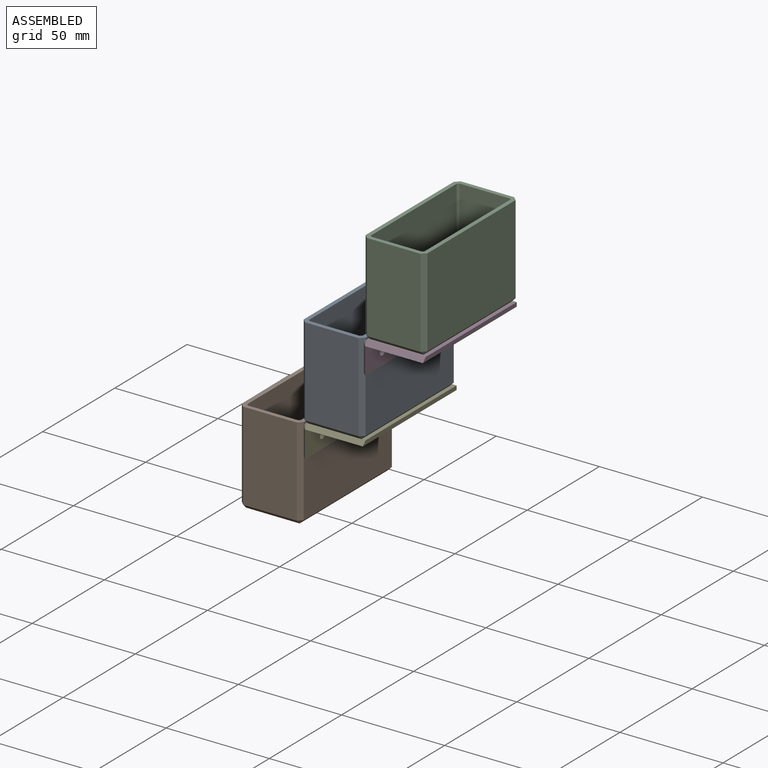
[diagram: assembled view]
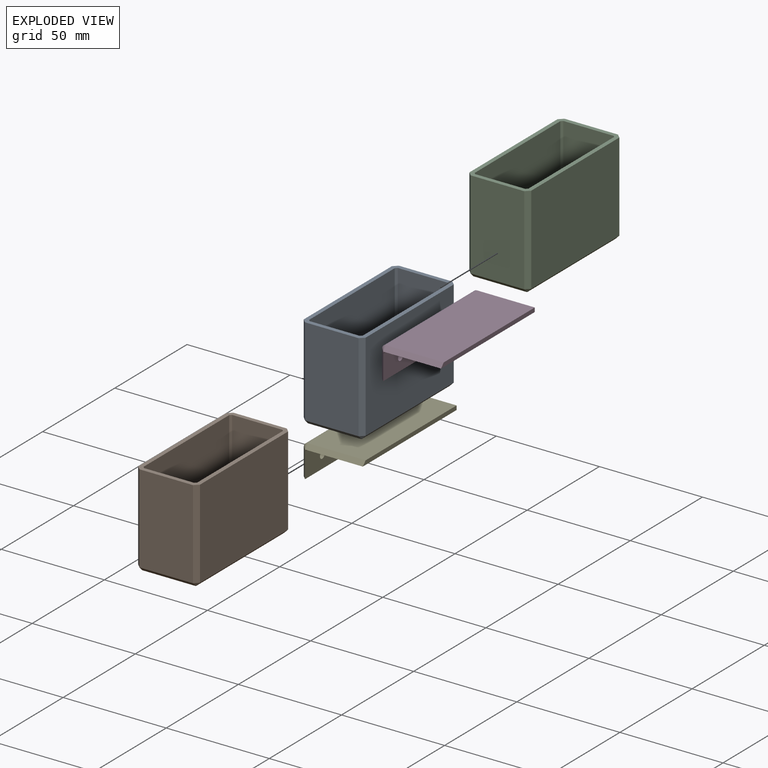
[diagram: exploded view]
GUIDED TOUR — MATED ASSEMBLY (Onshape document 3da9f7d668171b96f185b66c, AutoMate assembly 3da9f7d668171b96f185b66c_e2c4ebff8135b606bf697213_e9b427cead353215f57af9dd_default)

This assembly has 5 components, labeled P0..P4 below (a component is one placed occurrence of a part; the same part can appear more than once), held together by 11 mates. A mate is a constraint between two components; its type names the relative motion it leaves free:
  PLANAR — leaves sliding in the plane through the listed point (normal = the listed direction) and rotation about that normal free.
Axis/direction vectors are unit vectors and 'through' points are millimeter coordinates, both in the assembly's world frame.

MATES
  1. PLANAR "Planar 1": P1 <-> P4, direction (0.000, 0.000, 1.000) through (-5.74, 12.58, -43.41) mm
  2. PLANAR "Planar 5": P1 <-> P0, direction (0.000, -1.000, 0.000) through (-5.74, -19.92, -64.91) mm
  3. PLANAR "Planar 3": P0 <-> P4, direction (0.000, 0.000, -1.000) through (24.26, 12.58, -43.41) mm
  4. PLANAR "Planar 8": P0 <-> P1, direction (0.000, 1.000, 0.000) through (24.26, 45.08, -19.91) mm
  5. PLANAR "Planar 4": P0 <-> P4, direction (1.000, 0.000, 0.000) through (39.26, 12.58, -41.41) mm
  6. PLANAR "Planar 10": P2 <-> P0, direction (0.000, -1.000, 0.000) through (54.26, -19.92, 25.09) mm
  7. PLANAR "Planar 2": P1 <-> P4, direction (1.000, 0.000, 0.000) through (9.26, 12.58, -64.91) mm
  8. PLANAR "Planar 11": P2 <-> P3, direction (1.000, 0.000, 0.000) through (69.26, 12.58, 25.09) mm
  9. PLANAR "Planar 6": P3 <-> P0, direction (-1.000, 0.000, 0.000) through (39.26, 12.38, -6.90) mm
  10. PLANAR "Planar 7": P0 <-> P3, direction (0.000, 0.000, 1.000) through (24.26, 12.58, 1.59) mm
  11. PLANAR "Planar 9": P2 <-> P3, direction (0.000, 0.000, -1.000) through (54.26, 12.58, 1.59) mm

ASSEMBLY ORDER
  1. P3 — the base component [order verified]
  2. P0 [order verified]
  3. P2 [order verified]
  4. P4 [order verified]
  5. P1 [order verified]
Order-tag legend:
  [order verified] — this step's position reverses a verified removal order: the component was checked to insert without passing through the ones already placed.

Of the 5 components, 5 carry the full construction recipe — the FeatureScript program that regenerates the part's solid from scratch; the rest are supplied as boundary geometry only.
Each toured component is shown spotlighted twice — in the assembled view, then in the exploded view, where a leader line traces a displaced component back to its assembled socket (saturated green if recipe-attached, orange if geometry-only; every other component desaturated gray) — followed by its recipe or geometry summary and the mates that hold it.
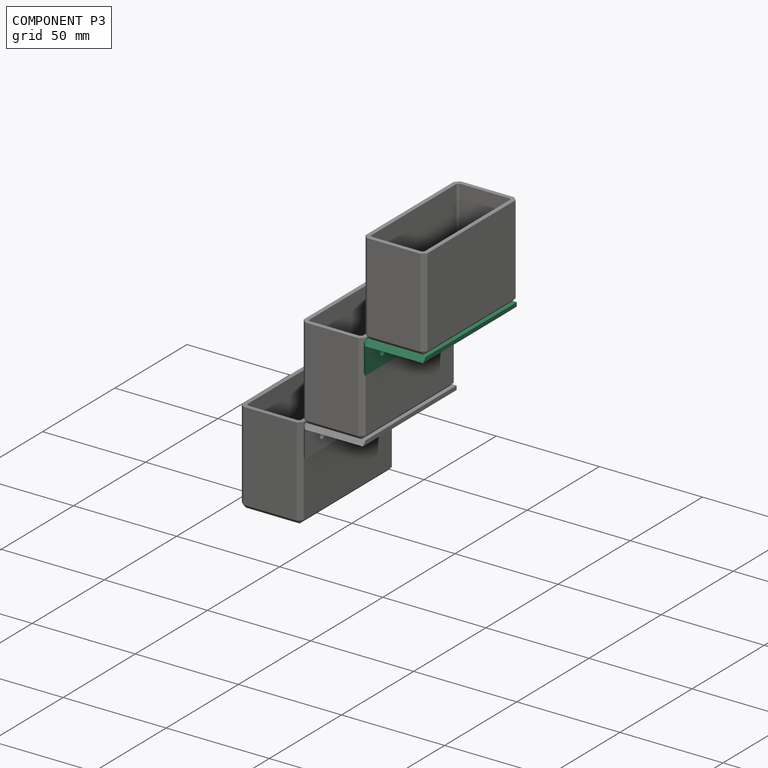
[diagram: component P3 — assembled]
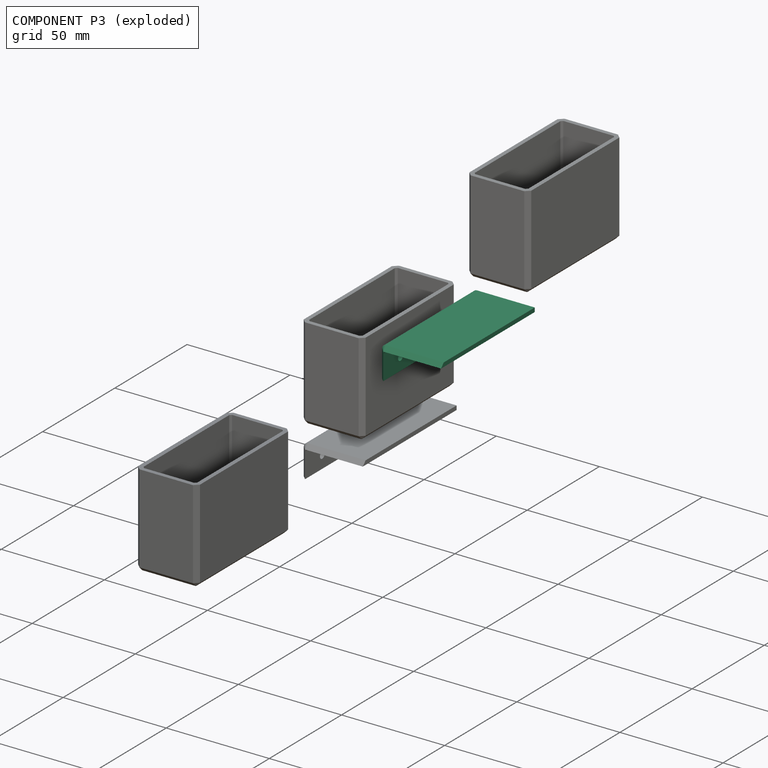
[diagram: component P3 — exploded]
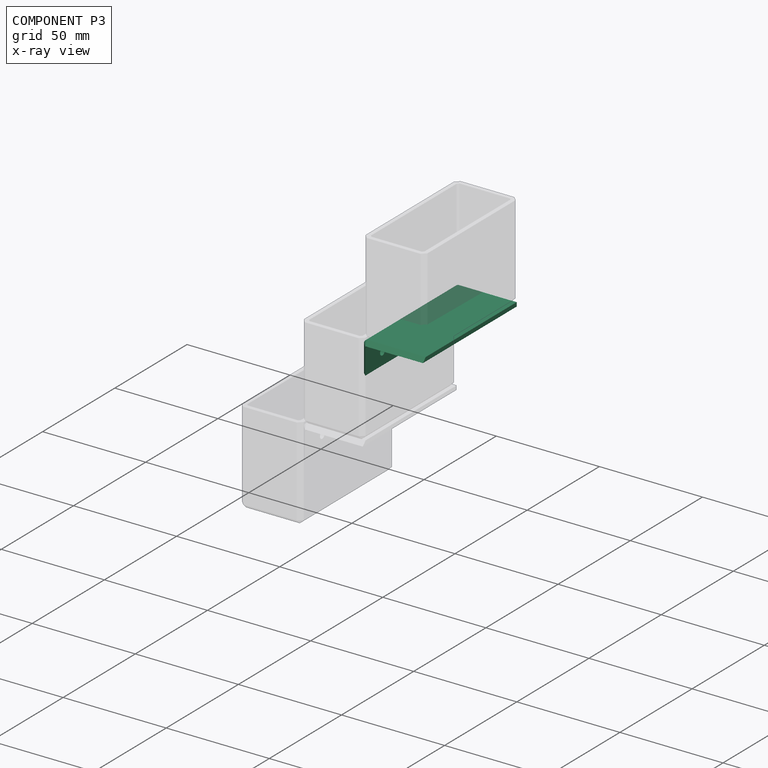
[diagram: component P3 — x-ray view]
COMPONENT P3 — recipe-attached (CADFS 00852757, mesh-verified: the recipe's output STEP matches this component's geometry to below the mesh-comparison resolution (tessellation chordal tolerance ~0.11 mm)).
Held by: PLANAR mate "Planar 11" to P2; PLANAR mate "Planar 6" to P0; PLANAR mate "Planar 7" to P0; PLANAR mate "Planar 9" to P2.
Construction recipe (FeatureScript — the CAD program that rebuilds this solid; sketch coordinates are in the units given by the * unit suffixes, e.g. mm):

FeatureScript 1511;
import(path : "onshape/std/geometry.fs", version : "1511.0");
import(path : "onshape/std/common.fs", version : "1511.0");
const mm = millimeter;
const VERTEX = EntityType.VERTEX;
const EDGE = EntityType.EDGE;
const FACE = EntityType.FACE;
const BODY = EntityType.BODY;
function v(x, y){return vector(x, y);}
function OD(order){return orderDisambiguation(order);}
function OSD(set){return originalSetDisambiguation(set);}
function TD(topology){return topologyDisambiguation(topology);}
function TDD(query){return trueDependencyDisambiguation(query);}
function sQuery(a, b, c) {return sketchEntityQuery(a, b, c);}

annotation { "Feature Type Name" : "Feature", "Feature Type Description" : "" }
export const myFeature = defineFeature(function(context is Context, id is Id, definition is map)
    precondition{}
    {
        {
            var Q0;
            Q0=qCreatedBy(makeId("Front.planeOp"),FACE);
            var sketch = newSketch(context, id + "F0", { "sketchPlane" : qUnion([Q0])});
            skLineSegment(sketch, "E0", {"start": v(-16.85, -13.38) * mm, "end": v(-16.85, -0.38) * mm});
            skLineSegment(sketch, "E1", {"start": v(-14.85, 1.62) * mm, "end": v(13.15, 1.62) * mm});
            skLineSegment(sketch, "E2.0", {"start": v(-13.85, -0.38) * mm, "end": v(13.15, -0.38) * mm});
            skLineSegment(sketch, "E2.1", {"start": v(-14.85, -13.38) * mm, "end": v(-14.85, -1.38) * mm});
            skLineSegment(sketch, "E3", {"start": v(-16.85, -13.38) * mm, "end": v(-14.85, -13.38) * mm});
            skLineSegment(sketch, "E4", {"start": v(13.15, 1.62) * mm, "end": v(13.15, -0.38) * mm});
            skPoint(sketch, "E5.visualSharp", {"position": v(-16.85, 1.62) * mm});
            skArc(sketch, "E5.filletArc", {"start": v(-14.85, 1.62) * mm, "mid": v(-16.27, 1.03) * mm, "end": v(-16.85, -0.38) * mm});
            skArc(sketch, "E6.filletArc", {"start": v(-13.85, -0.38) * mm, "mid": v(-14.56, -0.67) * mm, "end": v(-14.85, -1.38) * mm});
            skSolve(sketch);
        }
        {
            var Q0;
            Q0=makeQuery(id+"F0.imprint","IMPRINT",FACE,{"disambiguationData":[TD([[makeQuery(id+"F0.imprint","IMPRINT",EDGE,{"derivedFrom":sQuery(id+"F0.wireOp",EDGE,"E0")}),-1.0]])]});
            extrude(context, id + "F1", {"entities" : qUnion([Q0]), "depth" : 65 * mm, "offsetDistance" : 25 * mm});
        }
        {
            var Q0;
            Q0=makeQuery(id+"F1.opExtrude","CAP_EDGE",EDGE,{"disambiguationData":[OSD([sQuery(id+"F0.wireOp",EDGE,"E0")])],"isStart":false});
            chamfer(context, id + "F2", {"entities" : qUnion([Q0]), "width" : 2 * mm, "tangentPropagation" : true});
        }
        {
            var Q0;
            Q0=makeQuery(id+"F1.opExtrude","SWEPT_FACE",FACE,{"disambiguationData":[OSD([sQuery(id+"F0.wireOp",EDGE,"E2.1")])]});
            var sketch = newSketch(context, id + "F3", { "sketchPlane" : qUnion([Q0])});
            skCircle(sketch, "E7", {"center": v(-53.05, -7.38) * mm, "radius": 1.6 * mm});
            skPoint(sketch, "E7.centerSnap0", {"position": v(-65, -7.38) * mm});
            skLineSegment(sketch, "E8", {"start": v(-32.5, 2.02) * mm, "end": v(-32.5, -13.38) * mm, "construction": true});
            skPoint(sketch, "E8.startSnap0", {"position": v(-32.5, -1.38) * mm});
            skCircle(sketch, "E9.MirrorC", {"center": v(-11.95, -7.38) * mm, "radius": 1.6 * mm});
            skSolve(sketch);
        }
        {
            var Q0;
            Q0 = qSketchRegion(id + "F3", true);
            extrude(context, id + "F4", {"entities" : qUnion([Q0]), "operationType" : NewBodyOperationType.REMOVE, "endBound" : BoundingType.UP_TO_NEXT, "oppositeDirection" : true, "depth" : 25 * mm, "offsetDistance" : 25 * mm});
        }
    });
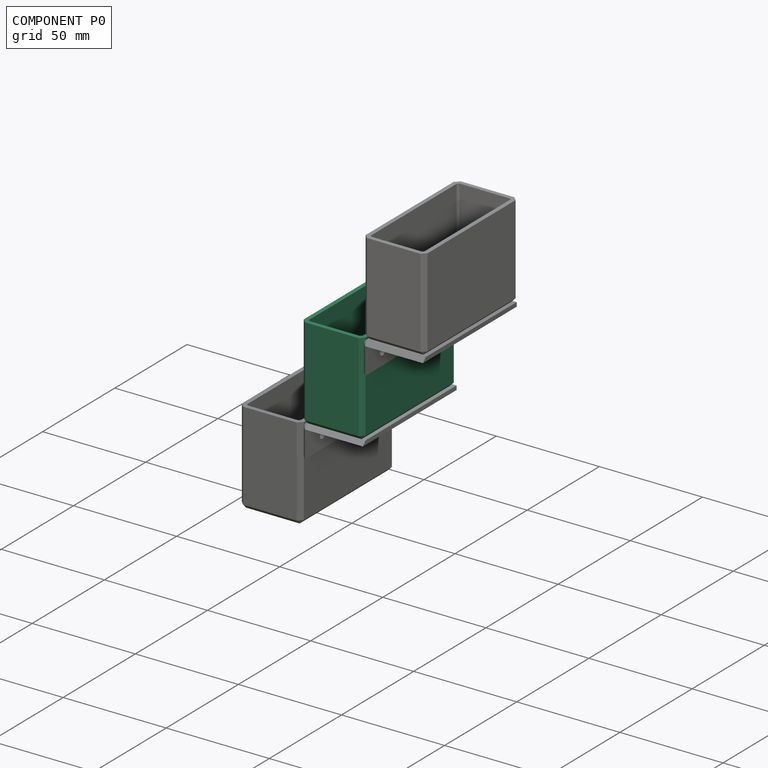
[diagram: component P0 — assembled]
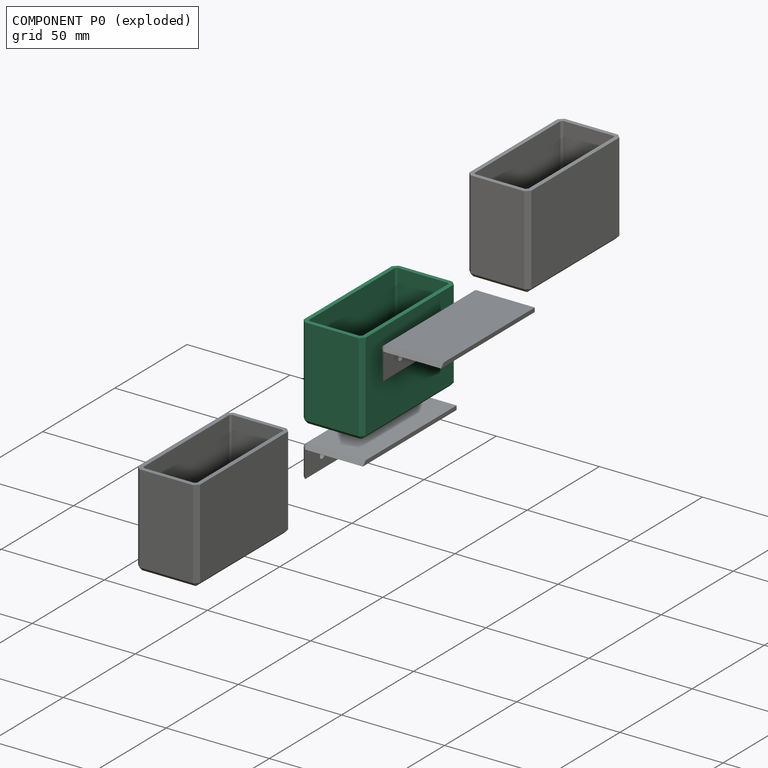
[diagram: component P0 — exploded]
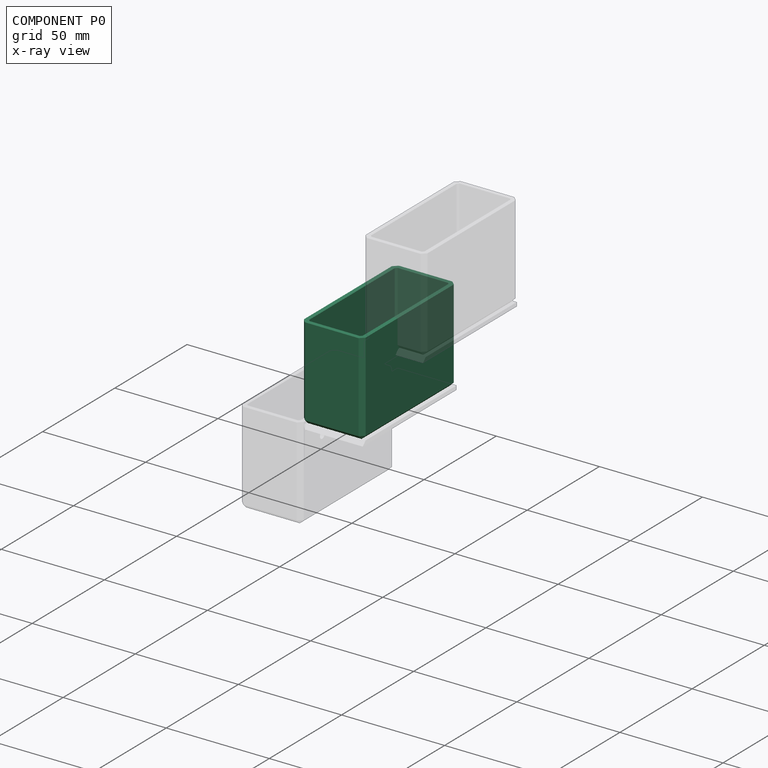
[diagram: component P0 — x-ray view]
COMPONENT P0 — recipe-attached (CADFS 00852756, mesh-verified: the recipe's output STEP matches this component's geometry to below the mesh-comparison resolution (tessellation chordal tolerance ~0.127 mm)).
Held by: PLANAR mate "Planar 5" to P1; PLANAR mate "Planar 3" to P4; PLANAR mate "Planar 8" to P1; PLANAR mate "Planar 4" to P4; PLANAR mate "Planar 10" to P2; PLANAR mate "Planar 6" to P3; PLANAR mate "Planar 7" to P3.
Construction recipe (FeatureScript — the CAD program that rebuilds this solid; sketch coordinates are in the units given by the * unit suffixes, e.g. mm):

FeatureScript 1511;
import(path : "onshape/std/geometry.fs", version : "1511.0");
import(path : "onshape/std/common.fs", version : "1511.0");
const mm = millimeter;
const VERTEX = EntityType.VERTEX;
const EDGE = EntityType.EDGE;
const FACE = EntityType.FACE;
const BODY = EntityType.BODY;
function v(x, y){return vector(x, y);}
function OD(order){return orderDisambiguation(order);}
function OSD(set){return originalSetDisambiguation(set);}
function TD(topology){return topologyDisambiguation(topology);}
function TDD(query){return trueDependencyDisambiguation(query);}
function sQuery(a, b, c) {return sketchEntityQuery(a, b, c);}

annotation { "Feature Type Name" : "Feature", "Feature Type Description" : "" }
export const myFeature = defineFeature(function(context is Context, id is Id, definition is map)
    precondition{}
    {
        {
            var Q0;
            Q0=qCreatedBy(makeId("Top.planeOp"),FACE);
            var sketch = newSketch(context, id + "F0", { "sketchPlane" : qUnion([Q0])});
            skLineSegment(sketch, "E0.bottom", {"start": v(-15, 32.5) * mm, "end": v(15, 32.5) * mm});
            skLineSegment(sketch, "E0.top", {"start": v(-15, -32.5) * mm, "end": v(15, -32.5) * mm});
            skLineSegment(sketch, "E0.left", {"start": v(-15, 32.5) * mm, "end": v(-15, -32.5) * mm});
            skLineSegment(sketch, "E0.right", {"start": v(15, 32.5) * mm, "end": v(15, -32.5) * mm});
            skPoint(sketch, "E0.middle", {"position": v(0, 0) * mm});
            skSolve(sketch);
        }
        {
            var Q0;
            Q0=makeQuery(id+"F0.imprint","IMPRINT",FACE,{"disambiguationData":[TD([[makeQuery(id+"F0.imprint","IMPRINT",EDGE,{"derivedFrom":sQuery(id+"F0.wireOp",EDGE,"E0.bottom")}),-1.0]])]});
            extrude(context, id + "F1", {"entities" : qUnion([Q0]), "depth" : 45 * mm, "offsetDistance" : 25 * mm});
        }
        {
            var Q0;
            Q0=makeQuery(id+"F1.opExtrude","SWEPT_EDGE",EDGE,{"disambiguationData":[OSD([sQuery(id+"F0.wireOp",EDGE,"E0.top"),sQuery(id+"F0.wireOp",EDGE,"E0.right")])]});
            var Q1;
            Q1=makeQuery(id+"F1.opExtrude","SWEPT_EDGE",EDGE,{"disambiguationData":[OSD([sQuery(id+"F0.wireOp",EDGE,"E0.top"),sQuery(id+"F0.wireOp",EDGE,"E0.left")])]});
            var Q2;
            Q2=makeQuery(id+"F1.opExtrude","SWEPT_EDGE",EDGE,{"disambiguationData":[OSD([sQuery(id+"F0.wireOp",EDGE,"E0.bottom"),sQuery(id+"F0.wireOp",EDGE,"E0.right")])]});
            var Q3;
            Q3=makeQuery(id+"F1.opExtrude","SWEPT_EDGE",EDGE,{"disambiguationData":[OSD([sQuery(id+"F0.wireOp",EDGE,"E0.bottom"),sQuery(id+"F0.wireOp",EDGE,"E0.left")])]});
            var Q4;
            Q4=makeQuery(id+"F1.opExtrude","CAP_EDGE",EDGE,{"disambiguationData":[OSD([sQuery(id+"F0.wireOp",EDGE,"E0.right")])],"isStart":true});
            var Q5;
            Q5=makeQuery(id+"F1.opExtrude","CAP_EDGE",EDGE,{"disambiguationData":[OSD([sQuery(id+"F0.wireOp",EDGE,"E0.left")])],"isStart":true});
            var Q6;
            Q6=makeQuery(id+"F1.opExtrude","CAP_EDGE",EDGE,{"disambiguationData":[OSD([sQuery(id+"F0.wireOp",EDGE,"E0.bottom")])],"isStart":true});
            var Q7;
            Q7=makeQuery(id+"F1.opExtrude","CAP_EDGE",EDGE,{"disambiguationData":[OSD([sQuery(id+"F0.wireOp",EDGE,"E0.top")])],"isStart":true});
            chamfer(context, id + "F2", {"entities" : qUnion([Q0, Q1, Q2, Q3, Q4, Q5, Q6, Q7]), "width" : 2 * mm, "tangentPropagation" : true});
        }
        {
            var Q0;
            Q0=makeQuery(id+"F1.opExtrude","CAP_FACE",FACE,{"disambiguationData":[OSD([sQuery(id+"F0.wireOp",EDGE,"E0.bottom"),sQuery(id+"F0.wireOp",EDGE,"E0.top"),sQuery(id+"F0.wireOp",EDGE,"E0.left"),sQuery(id+"F0.wireOp",EDGE,"E0.right")])],"isStart":false});
            shell(context, id + "F3", {"entities" : qUnion([Q0]), "thickness" : 2 * mm});
        }
    });
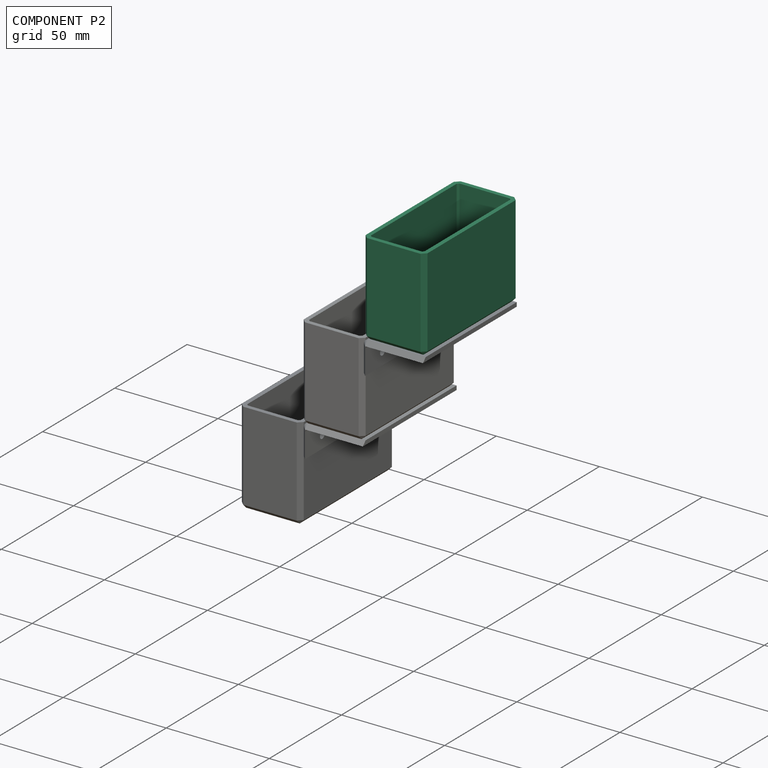
[diagram: component P2 — assembled]
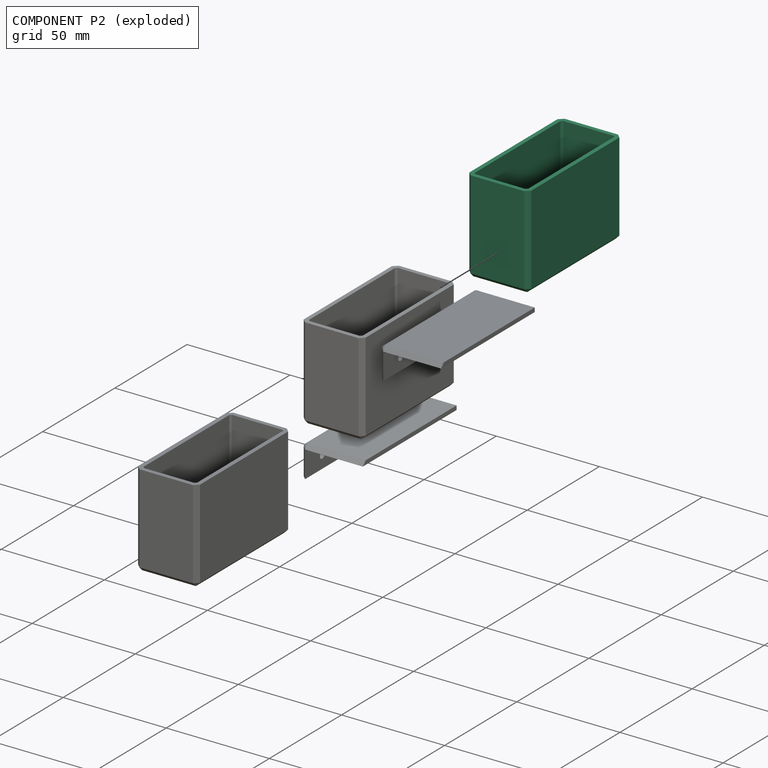
[diagram: component P2 — exploded]
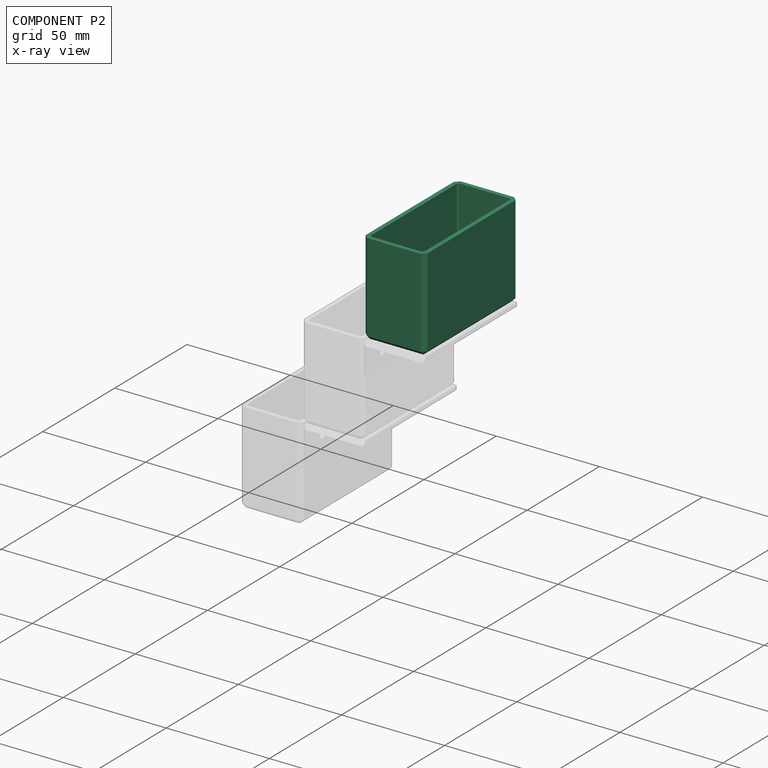
[diagram: component P2 — x-ray view]
COMPONENT P2 — same part as P0 (CADFS 00852756); its construction recipe is shown at P0.
Held by: PLANAR mate "Planar 10" to P0; PLANAR mate "Planar 11" to P3; PLANAR mate "Planar 9" to P3.
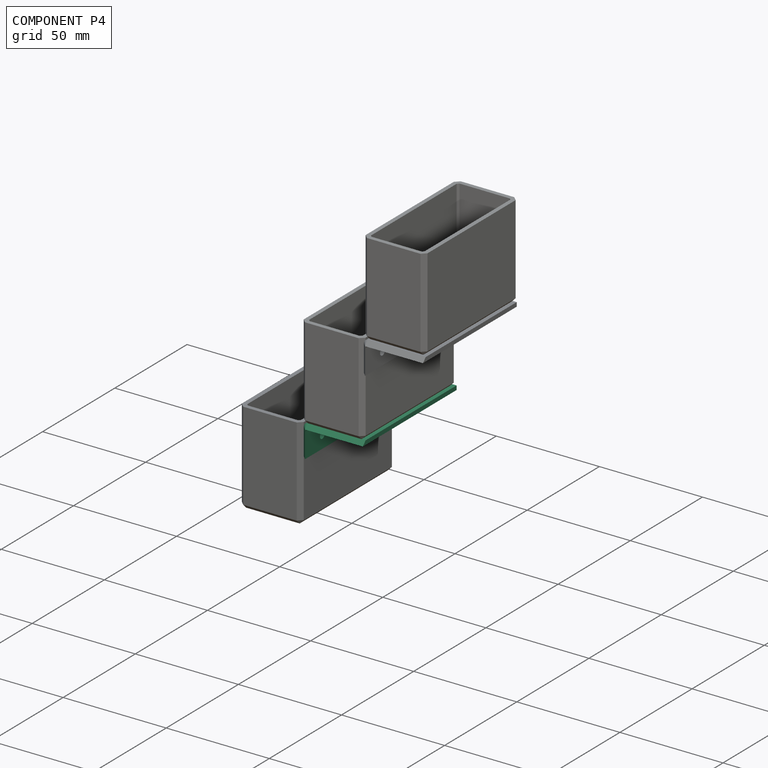
[diagram: component P4 — assembled]
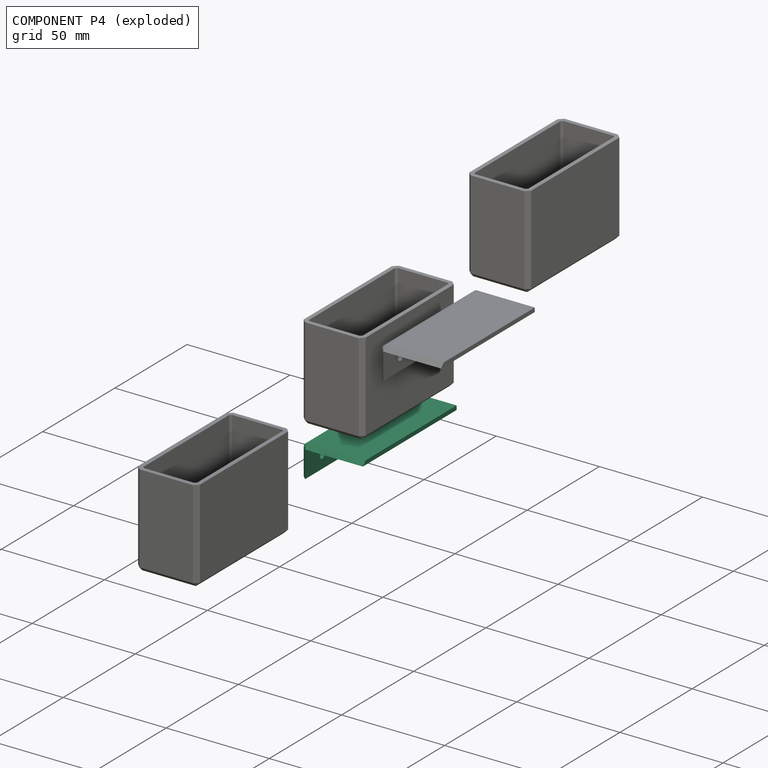
[diagram: component P4 — exploded]
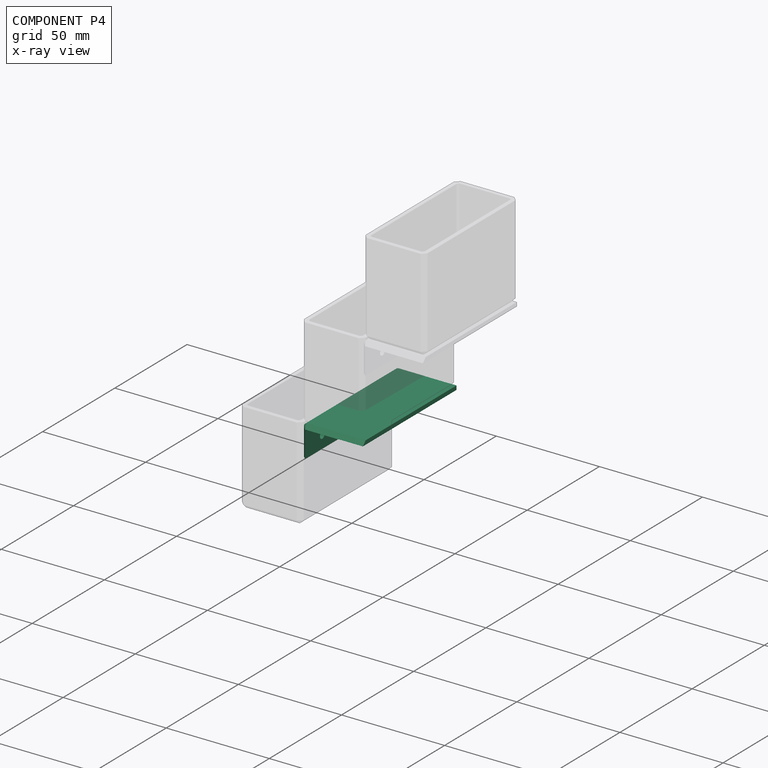
[diagram: component P4 — x-ray view]
COMPONENT P4 — same part as P3 (CADFS 00852757); its construction recipe is shown at P3.
Held by: PLANAR mate "Planar 1" to P1; PLANAR mate "Planar 3" to P0; PLANAR mate "Planar 4" to P0; PLANAR mate "Planar 2" to P1.
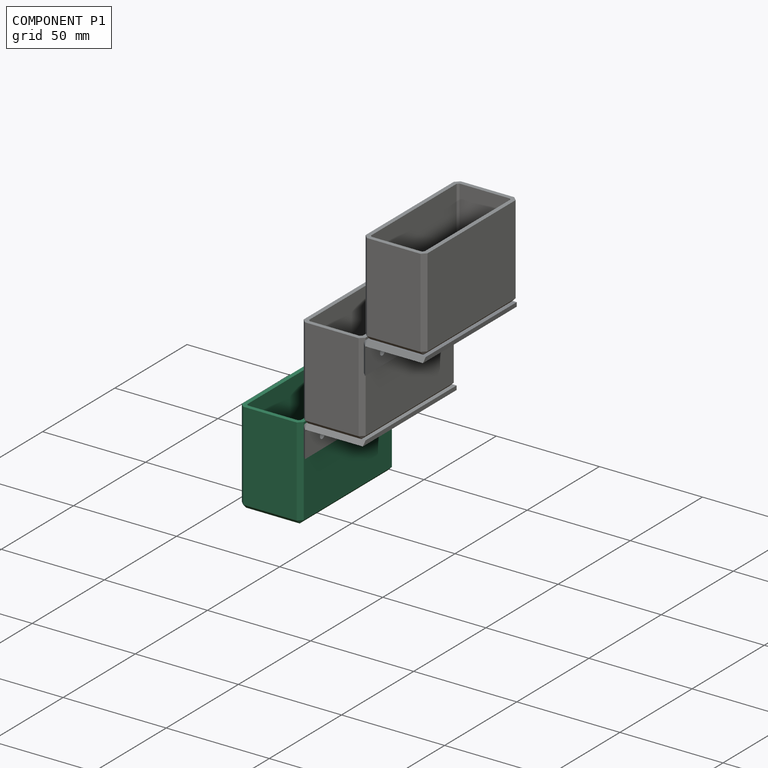
[diagram: component P1 — assembled]
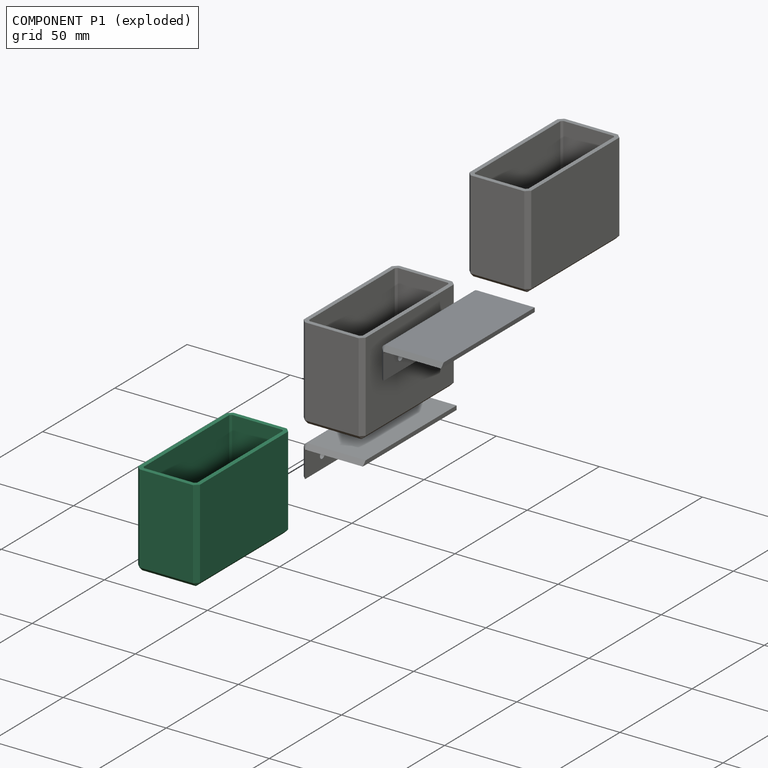
[diagram: component P1 — exploded]
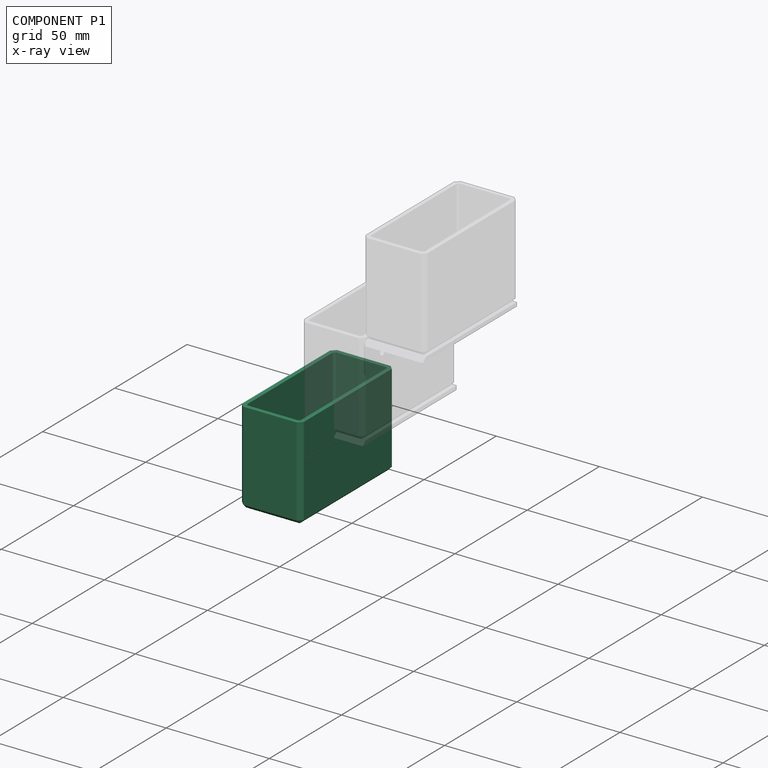
[diagram: component P1 — x-ray view]
COMPONENT P1 — same part as P0 (CADFS 00852756); its construction recipe is shown at P0.
Held by: PLANAR mate "Planar 1" to P4; PLANAR mate "Planar 5" to P0; PLANAR mate "Planar 8" to P0; PLANAR mate "Planar 2" to P4.
PROVENANCE & LICENSES
Assembly (occurrences, transforms, mates, per-part STEP geometry): AutoMate dataset, Zenodo record 7776208, CC0.
Construction recipes: CADFS (HuggingFace VladPyatov/CADFS, CC-BY-4.0, layered over the ABC dataset), FeatureScript reconstruction programs keyed by ABC model id.
Join: ABC meta listings map ABC model id -> Onshape documentId; within a shared document, parts are matched by geometric signature (bounding-box dims + volume at 0.1% relative tolerance, exact B-rep face/solid counts).
Verification: 5 of this assembly's 5 components carry a recipe attachment, and every attachment is mesh-verified: the CADFS STEP and the AutoMate member STEP were compared as meshes in their shared local frame (symmetric sampled-point-to-mesh distance); worst across the 5 attachments: below the mesh-comparison resolution (tessellation chordal tolerance ~0.127 mm) on a 85 mm part.
Renders: orthographic iso camera (az 35 / el 25); the floor grid conveys scale (grid pitch printed in each image; no ruler). In the exploded view each component is displaced by its stored offset vector: the offsets alone carry the explosion direction (mate normal/axis signs are not orientation cues and do not encode it), and separation distances are assigned per mate-chain, not proportionally to assembly-order depth.
